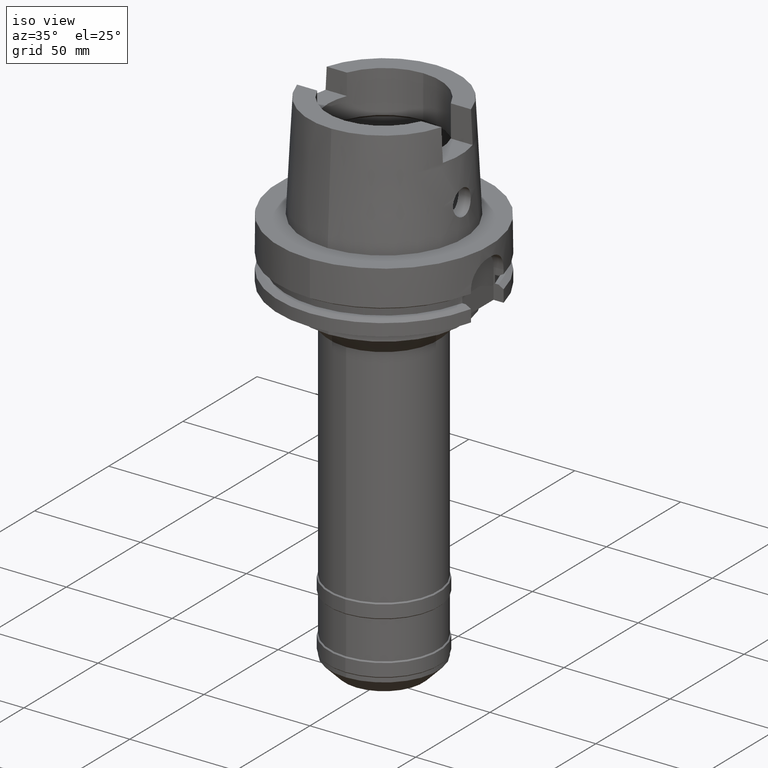
[diagram: clean part render]
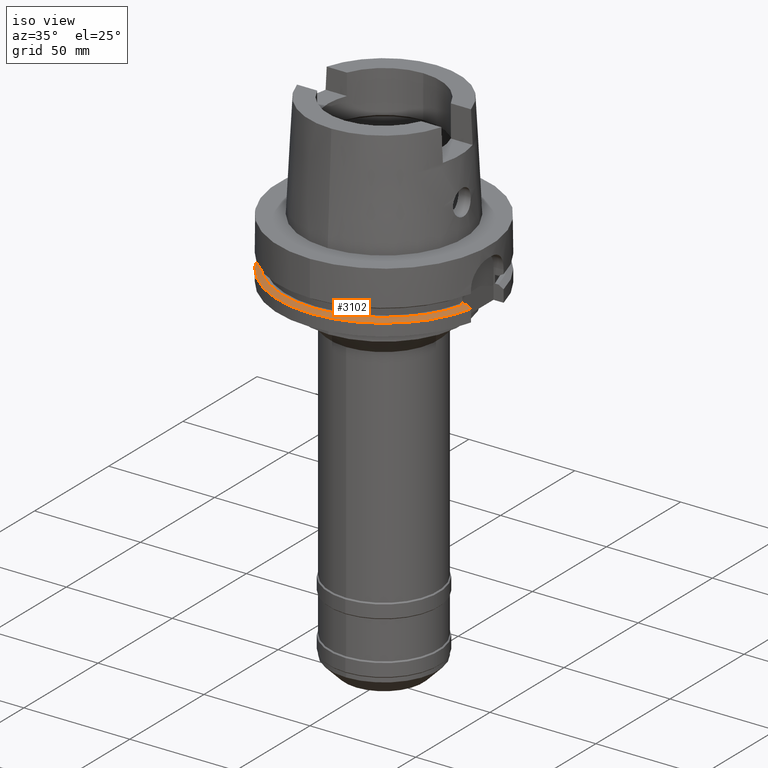
[diagram: same view with one face highlighted and labeled with its STEP entity id]
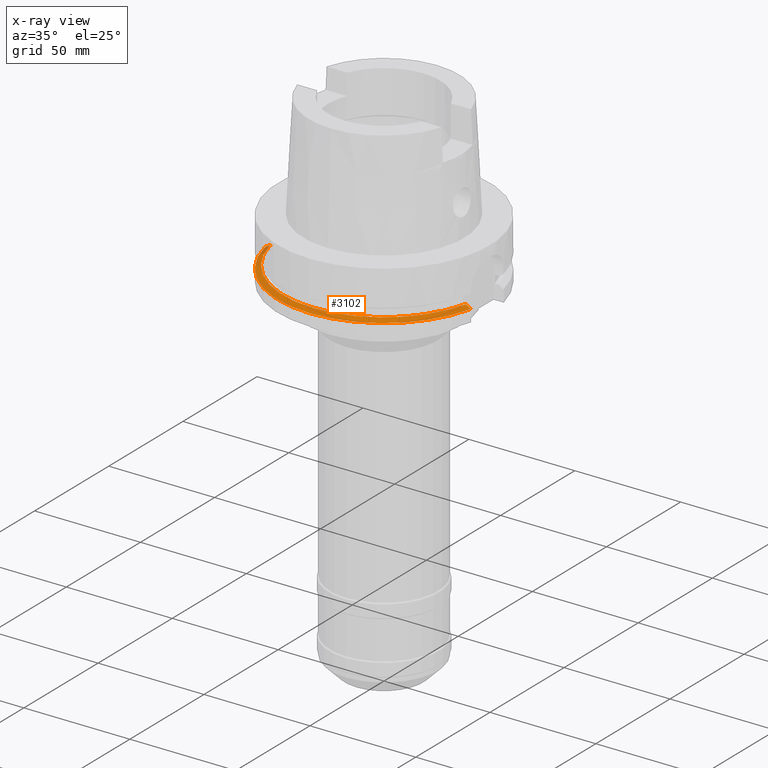
[diagram: x-ray of the same camera — body ghosted, the highlighted face saturated]
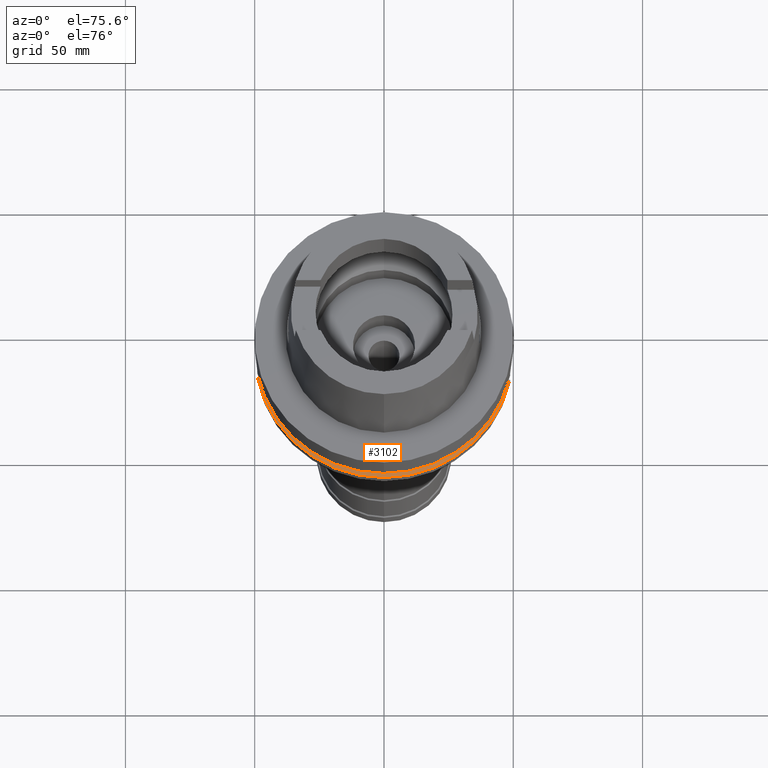
[diagram: same view with one face highlighted and labeled with its STEP entity id]
A machine part, iso view. The second image highlights one B-rep face of the part: STEP entity #3102.
The next image is the same camera in x-ray: the body ghosted, the highlighted face saturated — about 2% of this face is hidden behind the body in this view.
A second angle (auxiliary view) of the same face is appended — the face is thin or edge-on in the first view.
In plain terms, the highlighted conical surface has half-angle 60 deg.
Its self-contained STEP definition (entity closure, byte-faithful):
#966=CARTESIAN_POINT('',(-4.898979485566E1,-1.E1,-2.324759526419E1));
#967=CARTESIAN_POINT('',(-4.872002593966E1,-1.E1,-2.309499092031E1));
#968=CARTESIAN_POINT('',(-4.818041161677E1,-1.E1,-2.278984413389E1));
#969=CARTESIAN_POINT('',(-4.737076227628E1,-1.E1,-2.233230648793E1));
#970=CARTESIAN_POINT('',(-4.683084020607E1,-1.E1,-2.202741066863E1));
#971=CARTESIAN_POINT('',(-4.656083740330E1,-1.E1,-2.1875E1));
#976=CARTESIAN_POINT('',(4.633477721644E1,-1.1E1,-2.1875E1));
#977=CARTESIAN_POINT('',(4.660605711265E1,-1.1E1,-2.202738808211E1));
#978=CARTESIAN_POINT('',(4.714851446811E1,-1.1E1,-2.233225649733E1));
#979=CARTESIAN_POINT('',(4.796191616323E1,-1.1E1,-2.278979543230E1));
#980=CARTESIAN_POINT('',(4.850399904748E1,-1.1E1,-2.309496975038E1));
#981=CARTESIAN_POINT('',(4.877499359303E1,-1.1E1,-2.324759526419E1));
#986=CARTESIAN_POINT('',(0.E0,0.E0,-2.324759526419E1));
#987=DIRECTION('',(0.E0,0.E0,-1.E0));
#988=DIRECTION('',(9.754998718606E-1,-2.2E-1,0.E0));
#989=AXIS2_PLACEMENT_3D('',#986,#987,#988);
#994=CARTESIAN_POINT('',(0.E0,0.E0,-2.324759526419E1));
#995=DIRECTION('',(0.E0,0.E0,-1.E0));
#996=DIRECTION('',(0.E0,-1.E0,0.E0));
#997=AXIS2_PLACEMENT_3D('',#994,#995,#996);
#1025=CARTESIAN_POINT('',(0.E0,0.E0,-2.1875E1));
#1026=DIRECTION('',(0.E0,0.E0,-1.E0));
#1027=DIRECTION('',(9.729578356533E-1,-2.309827916554E-1,0.E0));
#1028=AXIS2_PLACEMENT_3D('',#1025,#1026,#1027);
#1033=CARTESIAN_POINT('',(0.E0,0.E0,-2.1875E1));
#1034=DIRECTION('',(0.E0,0.E0,-1.E0));
#1035=DIRECTION('',(0.E0,-1.E0,0.E0));
#1036=AXIS2_PLACEMENT_3D('',#1033,#1034,#1035);
#2356=CARTESIAN_POINT('',(-4.656083740330E1,-1.E1,-2.1875E1));
#2357=VERTEX_POINT('',#2356);
#2358=VERTEX_POINT('',#966);
#2370=CARTESIAN_POINT('',(4.877499359303E1,-1.1E1,-2.324759526419E1));
#2371=CARTESIAN_POINT('',(0.E0,-5.E1,-2.324759526419E1));
#2372=VERTEX_POINT('',#2370);
#2373=VERTEX_POINT('',#2371);
#2378=CARTESIAN_POINT('',(7.925143403666E-14,-4.762259526419E1,-2.1875E1));
#2379=VERTEX_POINT('',#2378);
#2380=CARTESIAN_POINT('',(4.633477721644E1,-1.1E1,-2.1875E1));
#2381=VERTEX_POINT('',#2380);
#3087=CARTESIAN_POINT('',(0.E0,0.E0,-2.256129763210E1));
#3088=DIRECTION('',(0.E0,0.E0,-1.E0));
#3089=DIRECTION('',(0.E0,-1.E0,0.E0));
#3090=AXIS2_PLACEMENT_3D('',#3087,#3088,#3089);
#3091=CONICAL_SURFACE('',#3090,4.881129763209E1,6.E1);
#3092=ORIENTED_EDGE('',*,*,#2915,.T.);
#3094=ORIENTED_EDGE('',*,*,#3093,.F.);
#3096=ORIENTED_EDGE('',*,*,#3095,.F.);
#3097=ORIENTED_EDGE('',*,*,#3055,.T.);
#3098=ORIENTED_EDGE('',*,*,#3079,.T.);
#3099=ORIENTED_EDGE('',*,*,#3077,.T.);
#3100=EDGE_LOOP('',(#3092,#3094,#3096,#3097,#3098,#3099));
#3101=FACE_OUTER_BOUND('',#3100,.F.);
#972=B_SPLINE_CURVE_WITH_KNOTS('',3,(#966,#967,#968,#969,#970,#971),
.UNSPECIFIED.,.F.,.F.,(4,1,1,4),(0.E0,3.333333333333E-1,6.666666666667E-1,1.E0),
.UNSPECIFIED.);
#982=B_SPLINE_CURVE_WITH_KNOTS('',3,(#976,#977,#978,#979,#980,#981),
.UNSPECIFIED.,.F.,.F.,(4,1,1,4),(0.E0,3.333333333333E-1,6.666666666667E-1,1.E0),
.UNSPECIFIED.);
#990=CIRCLE('',#989,5.E1);
#998=CIRCLE('',#997,5.E1);
#1029=CIRCLE('',#1028,4.762259526419E1);
#1037=CIRCLE('',#1036,4.762259526419E1);
#2915=EDGE_CURVE('',#2358,#2357,#972,.T.);
#3055=EDGE_CURVE('',#2381,#2372,#982,.T.);
#3077=EDGE_CURVE('',#2373,#2358,#998,.T.);
#3079=EDGE_CURVE('',#2372,#2373,#990,.T.);
#3093=EDGE_CURVE('',#2379,#2357,#1037,.T.);
#3095=EDGE_CURVE('',#2381,#2379,#1029,.T.);
#3102=ADVANCED_FACE('',(#3101),#3091,.T.);